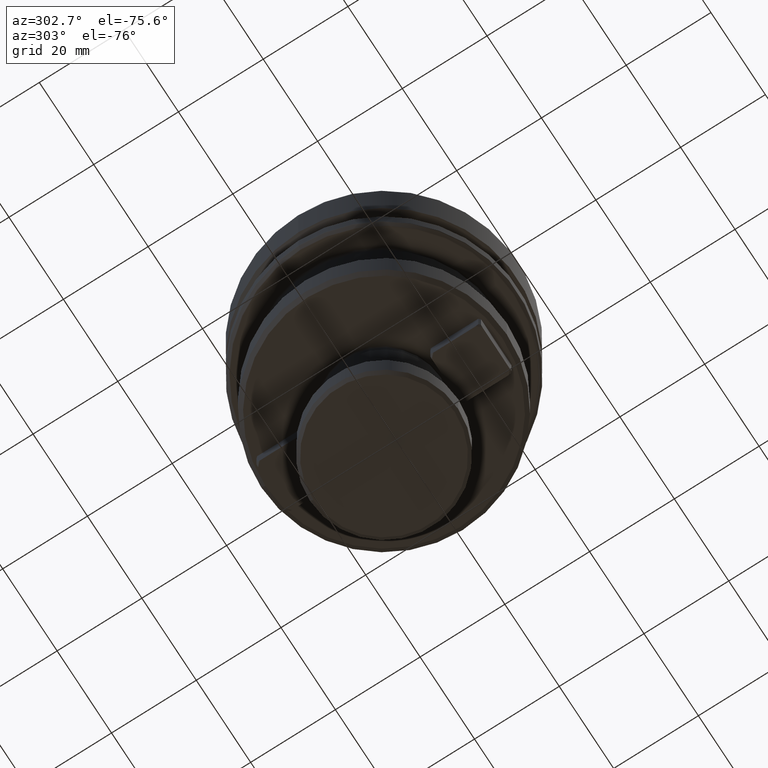
[diagram: clean part render]
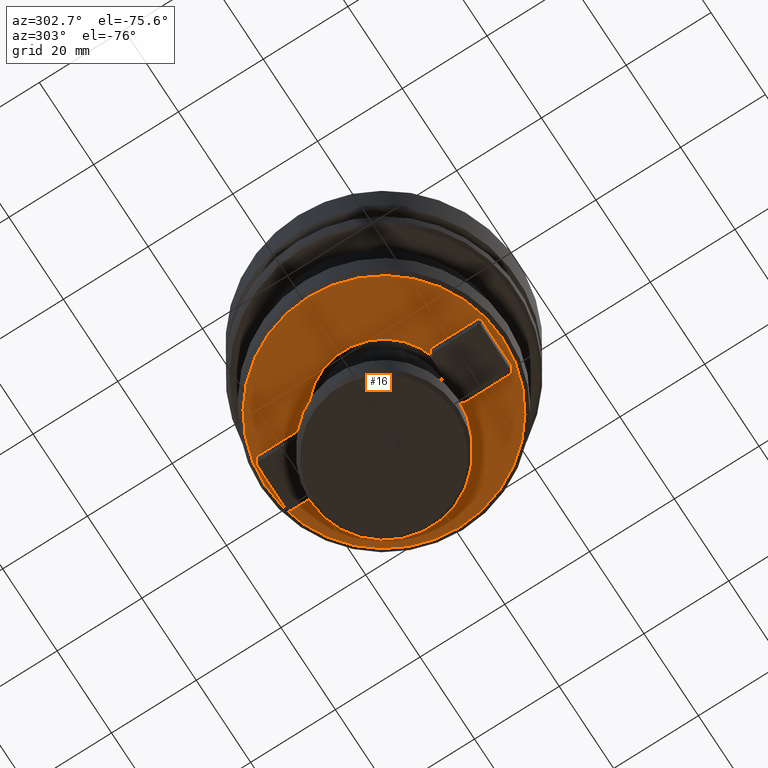
[diagram: same view with one face highlighted and labeled with its STEP entity id]
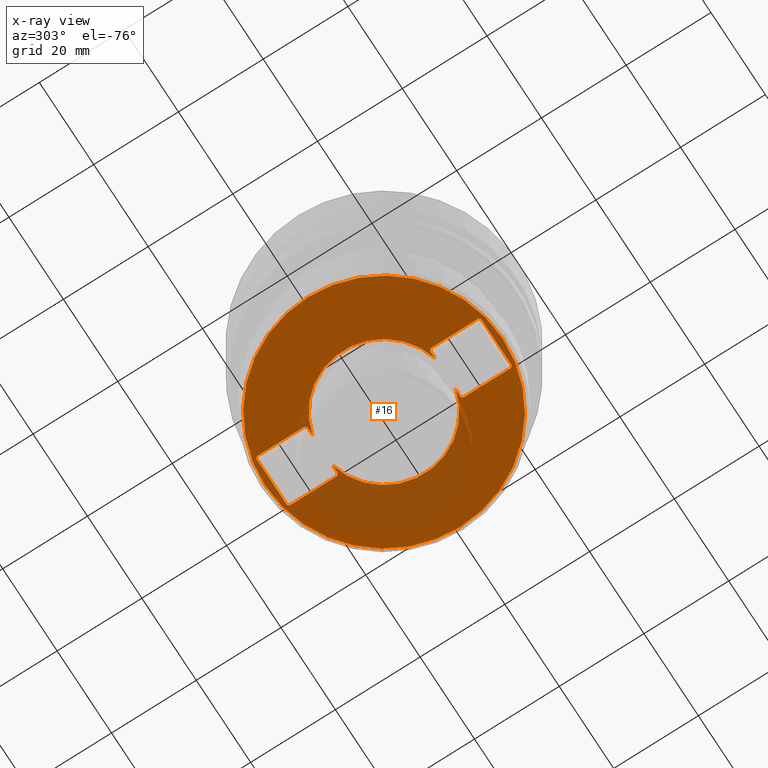
[diagram: x-ray of the same camera — body ghosted, the highlighted face saturated]
A machine part, auxiliary view. The second image highlights one B-rep face of the part: STEP entity #16.
The next image is the same camera in x-ray: the body ghosted, the highlighted face saturated — about 25% of this face is hidden behind the body in this view.
In plain terms, the highlighted planar face has unit normal (-0, 0, -1).
Its self-contained STEP definition (entity closure, byte-faithful):
#2 = VECTOR ( 'NONE', #933, 1000.000000000000100 ) ;
#11 = DIRECTION ( 'NONE',  ( 0.7071067811865474600, -0.7071067811865474600, 0.0000000000000000000 ) ) ;
#16 = ADVANCED_FACE ( 'NONE', ( #1897, #1295 ), #806, .T. ) ;
#33 = DIRECTION ( 'NONE',  ( 0.7071067811865460200, 0.7071067811865490200, -0.0000000000000000000 ) ) ;
#50 = CARTESIAN_POINT ( 'NONE',  ( 7.502633352528937000, 30.56509994229509500, -0.7817923329828530000 ) ) ;
#53 = VERTEX_POINT ( 'NONE', #2564 ) ;
#86 = DIRECTION ( 'NONE',  ( 0.0000000000000000000, 1.000000000000000000, 6.195440985631451400E-016 ) ) ;
#88 = LINE ( 'NONE', #1507, #667 ) ;
#108 = CARTESIAN_POINT ( 'NONE',  ( 7.502633352528937000, 30.56509994229509500, -0.7817923329828530000 ) ) ;
#156 = EDGE_CURVE ( 'NONE', #353, #2194, #906, .T. ) ;
#171 = CIRCLE ( 'NONE', #2317, 14.98000000000000000 ) ;
#189 = ORIENTED_EDGE ( 'NONE', *, *, #3190, .F. ) ;
#202 = LINE ( 'NONE', #847, #290 ) ;
#209 = ORIENTED_EDGE ( 'NONE', *, *, #2571, .F. ) ;
#229 = CARTESIAN_POINT ( 'NONE',  ( 1.902633352528940900, 32.06509994229509200, -0.7817923329828460100 ) ) ;
#239 = CARTESIAN_POINT ( 'NONE',  ( -3.697366647471063600, -10.43490005770490800, -0.7817923329828460100 ) ) ;
#241 = CARTESIAN_POINT ( 'NONE',  ( -3.697366647471062700, -22.43490005770491200, -0.7817923329828530000 ) ) ;
#242 = VECTOR ( 'NONE', #2983, 1000.000000000000000 ) ;
#251 = VERTEX_POINT ( 'NONE', #50 ) ;
#269 = CARTESIAN_POINT ( 'NONE',  ( 7.902633352528937400, 18.96509994229509000, -0.7817923329828460100 ) ) ;
#281 = EDGE_LOOP ( 'NONE', ( #644, #2207, #2782, #576, #2857, #977, #682, #724, #670, #209, #546, #189, #2104, #1320, #2297, #1694, #2082, #3037, #1178, #1217 ) ) ;
#290 = VECTOR ( 'NONE', #2592, 1000.000000000000000 ) ;
#323 = VERTEX_POINT ( 'NONE', #590 ) ;
#334 = VECTOR ( 'NONE', #355, 1000.000000000000000 ) ;
#353 = VERTEX_POINT ( 'NONE', #2601 ) ;
#355 = DIRECTION ( 'NONE',  ( -0.7071067811865497900, 0.7071067811865452400, 0.0000000000000000000 ) ) ;
#367 = VERTEX_POINT ( 'NONE', #2127 ) ;
#371 = DIRECTION ( 'NONE',  ( 0.7071067811865497900, -0.7071067811865452400, 0.0000000000000000000 ) ) ;
#382 = VERTEX_POINT ( 'NONE', #3096 ) ;
#414 = LINE ( 'NONE', #3095, #334 ) ;
#437 = LINE ( 'NONE', #3061, #2930 ) ;
#439 = CARTESIAN_POINT ( 'NONE',  ( -4.097366647471061700, 30.16509994229509300, -0.7817923329828530000 ) ) ;
#464 = CARTESIAN_POINT ( 'NONE',  ( 1.902633352528937400, 4.065099942295091800, -0.7817923329828460100 ) ) ;
#469 = EDGE_LOOP ( 'NONE', ( #2597, #2501 ) ) ;
#491 = CARTESIAN_POINT ( 'NONE',  ( 7.502633352528937900, -10.43490005770490800, -0.7817923329828460100 ) ) ;
#500 = EDGE_CURVE ( 'NONE', #1207, #251, #202, .T. ) ;
#530 = EDGE_CURVE ( 'NONE', #939, #2763, #1352, .T. ) ;
#535 = AXIS2_PLACEMENT_3D ( 'NONE', #2611, #1117, #2872 ) ;
#546 = ORIENTED_EDGE ( 'NONE', *, *, #1509, .F. ) ;
#558 = EDGE_CURVE ( 'NONE', #2194, #1063, #3208, .T. ) ;
#576 = ORIENTED_EDGE ( 'NONE', *, *, #1072, .F. ) ;
#587 = CARTESIAN_POINT ( 'NONE',  ( 1.902633352528937400, -23.93490005770490500, -0.7817923329828461200 ) ) ;
#590 = CARTESIAN_POINT ( 'NONE',  ( 5.664335095091735700, 18.56509994229509200, -0.7817923329828460100 ) ) ;
#642 = VECTOR ( 'NONE', #1987, 1000.000000000000000 ) ;
#644 = ORIENTED_EDGE ( 'NONE', *, *, #938, .F. ) ;
#654 = EDGE_CURVE ( 'NONE', #2763, #939, #1053, .T. ) ;
#667 = VECTOR ( 'NONE', #33, 1000.000000000000100 ) ;
#670 = ORIENTED_EDGE ( 'NONE', *, *, #1616, .F. ) ;
#682 = ORIENTED_EDGE ( 'NONE', *, *, #156, .F. ) ;
#687 = EDGE_CURVE ( 'NONE', #1063, #1364, #414, .T. ) ;
#693 = CARTESIAN_POINT ( 'NONE',  ( -4.097366647471062600, -10.83490005770490900, -0.7817923329828460100 ) ) ;
#708 = DIRECTION ( 'NONE',  ( 0.0000000000000000000, 1.000000000000000000, 7.237664702840483300E-018 ) ) ;
#724 = ORIENTED_EDGE ( 'NONE', *, *, #2339, .F. ) ;
#795 = CARTESIAN_POINT ( 'NONE',  ( 7.502633352528937900, 18.56509994229509200, -0.7817923329828460100 ) ) ;
#806 = PLANE ( 'NONE',  #1873 ) ;
#810 = CARTESIAN_POINT ( 'NONE',  ( -3.697366647471062700, -22.43490005770491200, -0.7817923329828530000 ) ) ;
#847 = CARTESIAN_POINT ( 'NONE',  ( 7.502633352528937000, 30.56509994229509500, -0.7817923329828530000 ) ) ;
#850 = VECTOR ( 'NONE', #11, 1000.000000000000100 ) ;
#876 = EDGE_CURVE ( 'NONE', #251, #2548, #974, .T. ) ;
#887 = LINE ( 'NONE', #1391, #2146 ) ;
#906 = LINE ( 'NONE', #2828, #2826 ) ;
#933 = DIRECTION ( 'NONE',  ( 0.7071067811865474600, 0.7071067811865474600, 0.0000000000000000000 ) ) ;
#938 = EDGE_CURVE ( 'NONE', #1435, #992, #2972, .T. ) ;
#939 = VERTEX_POINT ( 'NONE', #229 ) ;
#971 = DIRECTION ( 'NONE',  ( -0.0000000000000000000, 4.898587196589402800E-018, -1.000000000000000000 ) ) ;
#974 = LINE ( 'NONE', #108, #2374 ) ;
#977 = ORIENTED_EDGE ( 'NONE', *, *, #558, .F. ) ;
#992 = VERTEX_POINT ( 'NONE', #2004 ) ;
#994 = CARTESIAN_POINT ( 'NONE',  ( 7.902633352528937400, -10.83490005770490900, -0.7817923329828460100 ) ) ;
#1005 = DIRECTION ( 'NONE',  ( -0.0000000000000000000, 4.898587196589402800E-018, -1.000000000000000000 ) ) ;
#1015 = EDGE_CURVE ( 'NONE', #2548, #1643, #1921, .T. ) ;
#1048 = CARTESIAN_POINT ( 'NONE',  ( 1.902633352528937400, 32.06509994229509200, -0.7817923329828460100 ) ) ;
#1053 = CIRCLE ( 'NONE', #1691, 27.99999999999999600 ) ;
#1062 = VECTOR ( 'NONE', #3131, 1000.000000000000100 ) ;
#1063 = VERTEX_POINT ( 'NONE', #810 ) ;
#1067 = DIRECTION ( 'NONE',  ( 1.000000000000000000, 0.0000000000000000000, 0.0000000000000000000 ) ) ;
#1072 = EDGE_CURVE ( 'NONE', #1364, #2028, #1764, .T. ) ;
#1104 = EDGE_CURVE ( 'NONE', #382, #1435, #437, .T. ) ;
#1110 = CARTESIAN_POINT ( 'NONE',  ( -4.097366647471062600, 18.96509994229509000, -0.7817923329828460100 ) ) ;
#1117 = DIRECTION ( 'NONE',  ( -0.0000000000000000000, 4.898587196589402800E-018, -1.000000000000000000 ) ) ;
#1148 = VERTEX_POINT ( 'NONE', #439 ) ;
#1156 = DIRECTION ( 'NONE',  ( -7.744301232039316700E-017, -1.000000000000000000, -6.195440985631453300E-016 ) ) ;
#1178 = ORIENTED_EDGE ( 'NONE', *, *, #2915, .F. ) ;
#1207 = VERTEX_POINT ( 'NONE', #2951 ) ;
#1217 = ORIENTED_EDGE ( 'NONE', *, *, #1854, .F. ) ;
#1236 = LINE ( 'NONE', #1679, #3160 ) ;
#1295 = FACE_BOUND ( 'NONE', #281, .T. ) ;
#1299 = DIRECTION ( 'NONE',  ( 0.0000000000000000000, 1.000000000000000000, 4.898587196589402800E-018 ) ) ;
#1313 = LINE ( 'NONE', #2734, #1832 ) ;
#1320 = ORIENTED_EDGE ( 'NONE', *, *, #1015, .F. ) ;
#1352 = CIRCLE ( 'NONE', #535, 27.99999999999999600 ) ;
#1355 = CARTESIAN_POINT ( 'NONE',  ( -4.097366647471062600, -22.03490005770491300, -0.7817923329828530000 ) ) ;
#1358 = DIRECTION ( 'NONE',  ( -0.7071067811865474600, 0.7071067811865474600, -0.0000000000000000000 ) ) ;
#1364 = VERTEX_POINT ( 'NONE', #1355 ) ;
#1369 = CARTESIAN_POINT ( 'NONE',  ( 7.902633352528937400, 18.96509994229509000, -0.7817923329828460100 ) ) ;
#1379 = CARTESIAN_POINT ( 'NONE',  ( -1.859068390033860500, -10.43490005770490800, -0.7817923329828460100 ) ) ;
#1391 = CARTESIAN_POINT ( 'NONE',  ( 7.502633352528937900, 18.56509994229509200, -0.7817923329828460100 ) ) ;
#1401 = EDGE_CURVE ( 'NONE', #1643, #2188, #3057, .T. ) ;
#1435 = VERTEX_POINT ( 'NONE', #1379 ) ;
#1473 = CARTESIAN_POINT ( 'NONE',  ( -4.097366647471062600, -10.83490005770490900, -0.7817923329828460100 ) ) ;
#1495 = CARTESIAN_POINT ( 'NONE',  ( -4.097366647471062600, 18.96509994229509000, -0.7817923329828460100 ) ) ;
#1507 = CARTESIAN_POINT ( 'NONE',  ( -3.697366647471062700, 30.56509994229509500, -0.7817923329828530000 ) ) ;
#1509 = EDGE_CURVE ( 'NONE', #323, #1562, #171, .T. ) ;
#1550 = LINE ( 'NONE', #239, #242 ) ;
#1562 = VERTEX_POINT ( 'NONE', #2719 ) ;
#1616 = EDGE_CURVE ( 'NONE', #1936, #53, #2843, .T. ) ;
#1618 = LINE ( 'NONE', #2165, #2797 ) ;
#1643 = VERTEX_POINT ( 'NONE', #269 ) ;
#1653 = DIRECTION ( 'NONE',  ( -1.000000000000000000, 0.0000000000000000000, 0.0000000000000000000 ) ) ;
#1679 = CARTESIAN_POINT ( 'NONE',  ( 7.502633352528937900, 18.56509994229509200, -0.7817923329828460100 ) ) ;
#1691 = AXIS2_PLACEMENT_3D ( 'NONE', #2495, #1005, #2755 ) ;
#1694 = ORIENTED_EDGE ( 'NONE', *, *, #500, .F. ) ;
#1764 = LINE ( 'NONE', #2074, #2330 ) ;
#1832 = VECTOR ( 'NONE', #2477, 1000.000000000000000 ) ;
#1834 = DIRECTION ( 'NONE',  ( -0.7071067811865460200, -0.7071067811865490200, 0.0000000000000000000 ) ) ;
#1854 = EDGE_CURVE ( 'NONE', #992, #367, #887, .T. ) ;
#1873 = AXIS2_PLACEMENT_3D ( 'NONE', #1048, #2805, #1299 ) ;
#1897 = FACE_OUTER_BOUND ( 'NONE', #469, .T. ) ;
#1921 = LINE ( 'NONE', #2792, #3166 ) ;
#1936 = VERTEX_POINT ( 'NONE', #491 ) ;
#1957 = EDGE_CURVE ( 'NONE', #2101, #1148, #1313, .T. ) ;
#1987 = DIRECTION ( 'NONE',  ( -1.000000000000000000, 0.0000000000000000000, 0.0000000000000000000 ) ) ;
#1994 = LINE ( 'NONE', #693, #2 ) ;
#2004 = CARTESIAN_POINT ( 'NONE',  ( -1.859068390033860900, 18.56509994229509200, -0.7817923329828460100 ) ) ;
#2028 = VERTEX_POINT ( 'NONE', #1473 ) ;
#2074 = CARTESIAN_POINT ( 'NONE',  ( -4.097366647471062600, -22.03490005770491300, -0.7817923329828530000 ) ) ;
#2082 = ORIENTED_EDGE ( 'NONE', *, *, #2671, .F. ) ;
#2101 = VERTEX_POINT ( 'NONE', #1495 ) ;
#2104 = ORIENTED_EDGE ( 'NONE', *, *, #1401, .F. ) ;
#2127 = CARTESIAN_POINT ( 'NONE',  ( -3.697366647471063600, 18.56509994229509200, -0.7817923329828460100 ) ) ;
#2137 = AXIS2_PLACEMENT_3D ( 'NONE', #2461, #971, #2714 ) ;
#2146 = VECTOR ( 'NONE', #1653, 1000.000000000000000 ) ;
#2165 = CARTESIAN_POINT ( 'NONE',  ( 7.902633352528935600, -22.03490005770491000, -0.7817923329828530000 ) ) ;
#2188 = VERTEX_POINT ( 'NONE', #795 ) ;
#2194 = VERTEX_POINT ( 'NONE', #2791 ) ;
#2200 = DIRECTION ( 'NONE',  ( -1.000000000000000000, 0.0000000000000000000, 0.0000000000000000000 ) ) ;
#2207 = ORIENTED_EDGE ( 'NONE', *, *, #1104, .F. ) ;
#2208 = DIRECTION ( 'NONE',  ( -0.0000000000000000000, 4.898587196589402800E-018, -1.000000000000000000 ) ) ;
#2297 = ORIENTED_EDGE ( 'NONE', *, *, #876, .F. ) ;
#2317 = AXIS2_PLACEMENT_3D ( 'NONE', #464, #2208, #708 ) ;
#2330 = VECTOR ( 'NONE', #86, 1000.000000000000000 ) ;
#2339 = EDGE_CURVE ( 'NONE', #53, #353, #1618, .T. ) ;
#2374 = VECTOR ( 'NONE', #371, 1000.000000000000000 ) ;
#2461 = CARTESIAN_POINT ( 'NONE',  ( 1.902633352528937400, 4.065099942295091800, -0.7817923329828460100 ) ) ;
#2477 = DIRECTION ( 'NONE',  ( 7.744301232039316700E-017, 1.000000000000000000, -6.195440985631453300E-016 ) ) ;
#2495 = CARTESIAN_POINT ( 'NONE',  ( 1.902633352528937400, 4.065099942295091800, -0.7817923329828460100 ) ) ;
#2501 = ORIENTED_EDGE ( 'NONE', *, *, #530, .T. ) ;
#2548 = VERTEX_POINT ( 'NONE', #3230 ) ;
#2564 = CARTESIAN_POINT ( 'NONE',  ( 7.902633352528937400, -10.83490005770490900, -0.7817923329828460100 ) ) ;
#2571 = EDGE_CURVE ( 'NONE', #1562, #1936, #1550, .T. ) ;
#2592 = DIRECTION ( 'NONE',  ( 1.000000000000000000, -0.0000000000000000000, -0.0000000000000000000 ) ) ;
#2597 = ORIENTED_EDGE ( 'NONE', *, *, #654, .T. ) ;
#2598 = LINE ( 'NONE', #1110, #3197 ) ;
#2601 = CARTESIAN_POINT ( 'NONE',  ( 7.902633352528935600, -22.03490005770491000, -0.7817923329828530000 ) ) ;
#2611 = CARTESIAN_POINT ( 'NONE',  ( 1.902633352528937400, 4.065099942295091800, -0.7817923329828460100 ) ) ;
#2671 = EDGE_CURVE ( 'NONE', #1148, #1207, #88, .T. ) ;
#2714 = DIRECTION ( 'NONE',  ( 0.0000000000000000000, 1.000000000000000000, 7.237664702840483300E-018 ) ) ;
#2719 = CARTESIAN_POINT ( 'NONE',  ( 5.664335095091735700, -10.43490005770490800, -0.7817923329828460100 ) ) ;
#2734 = CARTESIAN_POINT ( 'NONE',  ( -4.097366647471061700, 30.16509994229509300, -0.7817923329828530000 ) ) ;
#2755 = DIRECTION ( 'NONE',  ( 0.0000000000000000000, 1.000000000000000000, 3.872150616019658800E-018 ) ) ;
#2763 = VERTEX_POINT ( 'NONE', #587 ) ;
#2782 = ORIENTED_EDGE ( 'NONE', *, *, #3122, .F. ) ;
#2791 = CARTESIAN_POINT ( 'NONE',  ( 7.502633352528937000, -22.43490005770491200, -0.7817923329828530000 ) ) ;
#2792 = CARTESIAN_POINT ( 'NONE',  ( 7.902633352528937400, 30.16509994229509700, -0.7817923329828530000 ) ) ;
#2797 = VECTOR ( 'NONE', #1156, 1000.000000000000000 ) ;
#2805 = DIRECTION ( 'NONE',  ( -0.0000000000000000000, 4.898587196589402800E-018, -1.000000000000000000 ) ) ;
#2826 = VECTOR ( 'NONE', #1834, 1000.000000000000100 ) ;
#2828 = CARTESIAN_POINT ( 'NONE',  ( 7.502633352528937000, -22.43490005770491200, -0.7817923329828530000 ) ) ;
#2843 = LINE ( 'NONE', #994, #850 ) ;
#2857 = ORIENTED_EDGE ( 'NONE', *, *, #687, .F. ) ;
#2872 = DIRECTION ( 'NONE',  ( 0.0000000000000000000, 1.000000000000000000, 3.872150616019658800E-018 ) ) ;
#2915 = EDGE_CURVE ( 'NONE', #367, #2101, #2598, .T. ) ;
#2930 = VECTOR ( 'NONE', #1067, 1000.000000000000000 ) ;
#2951 = CARTESIAN_POINT ( 'NONE',  ( -3.697366647471062700, 30.56509994229509500, -0.7817923329828530000 ) ) ;
#2972 = CIRCLE ( 'NONE', #2137, 14.98000000000000000 ) ;
#2983 = DIRECTION ( 'NONE',  ( 1.000000000000000000, 0.0000000000000000000, 0.0000000000000000000 ) ) ;
#3036 = DIRECTION ( 'NONE',  ( 0.0000000000000000000, -1.000000000000000000, 6.195440985631451400E-016 ) ) ;
#3037 = ORIENTED_EDGE ( 'NONE', *, *, #1957, .F. ) ;
#3057 = LINE ( 'NONE', #1369, #1062 ) ;
#3061 = CARTESIAN_POINT ( 'NONE',  ( -3.697366647471063600, -10.43490005770490800, -0.7817923329828460100 ) ) ;
#3095 = CARTESIAN_POINT ( 'NONE',  ( -3.697366647471062700, -22.43490005770491200, -0.7817923329828530000 ) ) ;
#3096 = CARTESIAN_POINT ( 'NONE',  ( -3.697366647471063600, -10.43490005770490800, -0.7817923329828460100 ) ) ;
#3122 = EDGE_CURVE ( 'NONE', #2028, #382, #1994, .T. ) ;
#3131 = DIRECTION ( 'NONE',  ( -0.7071067811865474600, -0.7071067811865474600, 0.0000000000000000000 ) ) ;
#3160 = VECTOR ( 'NONE', #2200, 1000.000000000000000 ) ;
#3166 = VECTOR ( 'NONE', #3036, 1000.000000000000000 ) ;
#3190 = EDGE_CURVE ( 'NONE', #2188, #323, #1236, .T. ) ;
#3197 = VECTOR ( 'NONE', #1358, 1000.000000000000100 ) ;
#3208 = LINE ( 'NONE', #241, #642 ) ;
#3230 = CARTESIAN_POINT ( 'NONE',  ( 7.902633352528937400, 30.16509994229509700, -0.7817923329828530000 ) ) ;